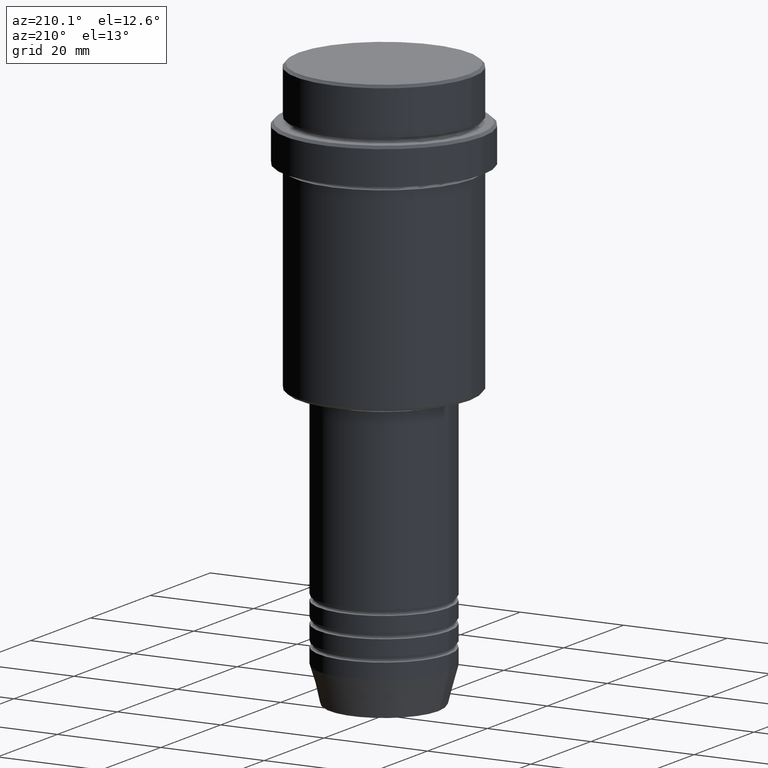
[diagram: clean part render]
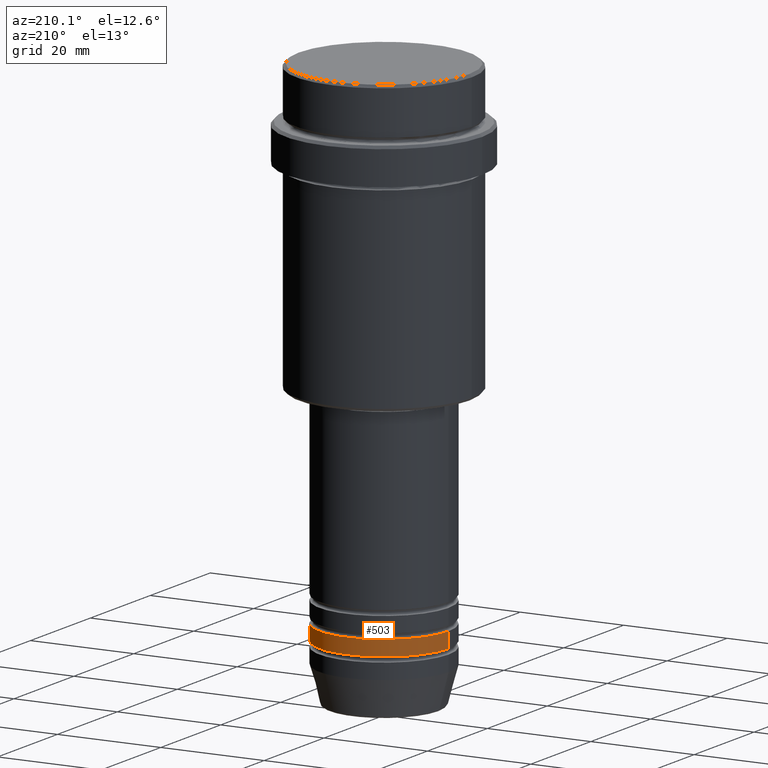
[diagram: same view with one face highlighted and labeled with its STEP entity id]
A machine part, auxiliary view. The second image highlights one B-rep face of the part: STEP entity #503.
In plain terms, the highlighted cylindrical surface (partial cylindrical patch) has radius 12.5 mm, axis along (-0, -0, 1).
Its self-contained STEP definition (entity closure, byte-faithful):
#49 = VECTOR ( 'NONE', #916, 1000.000000000000000 ) ;
#87 = VERTEX_POINT ( 'NONE', #915 ) ;
#122 = DIRECTION ( 'NONE',  ( 1.000000000000000000, 0.000000000000000000, 0.000000000000000000 ) ) ;
#153 = LINE ( 'NONE', #1024, #224 ) ;
#174 = CYLINDRICAL_SURFACE ( 'NONE', #407, 12.50000000000000000 ) ;
#224 = VECTOR ( 'NONE', #474, 1000.000000000000000 ) ;
#285 = FACE_OUTER_BOUND ( 'NONE', #325, .T. ) ;
#298 = CARTESIAN_POINT ( 'NONE',  ( 12.50000000000000000, 0.000000000000000000, -95.99999999999988631 ) ) ;
#325 = EDGE_LOOP ( 'NONE', ( #824, #1383, #430, #356 ) ) ;
#356 = ORIENTED_EDGE ( 'NONE', *, *, #1165, .F. ) ;
#380 = CARTESIAN_POINT ( 'NONE',  ( -12.50000000000000000, 1.530808498934191521E-15, -98.99999999999990052 ) ) ;
#407 = AXIS2_PLACEMENT_3D ( 'NONE', #948, #591, #738 ) ;
#430 = ORIENTED_EDGE ( 'NONE', *, *, #482, .F. ) ;
#432 = AXIS2_PLACEMENT_3D ( 'NONE', #696, #1342, #122 ) ;
#444 = EDGE_CURVE ( 'NONE', #854, #1068, #153, .T. ) ;
#468 = CARTESIAN_POINT ( 'NONE',  ( 12.50000000000000000, 0.000000000000000000, 0.000000000000000000 ) ) ;
#474 = DIRECTION ( 'NONE',  ( -0.000000000000000000, -0.000000000000000000, 1.000000000000000000 ) ) ;
#482 = EDGE_CURVE ( 'NONE', #528, #1068, #1378, .T. ) ;
#503 = ADVANCED_FACE ( 'NONE', ( #285 ), #174, .T. ) ;
#505 = CARTESIAN_POINT ( 'NONE',  ( 0.000000000000000000, 0.000000000000000000, -95.99999999999988631 ) ) ;
#528 = VERTEX_POINT ( 'NONE', #298 ) ;
#591 = DIRECTION ( 'NONE',  ( -0.000000000000000000, -0.000000000000000000, 1.000000000000000000 ) ) ;
#658 = LINE ( 'NONE', #468, #49 ) ;
#696 = CARTESIAN_POINT ( 'NONE',  ( 0.000000000000000000, 0.000000000000000000, -98.99999999999990052 ) ) ;
#738 = DIRECTION ( 'NONE',  ( 1.000000000000000000, 0.000000000000000000, 0.000000000000000000 ) ) ;
#745 = EDGE_CURVE ( 'NONE', #87, #854, #876, .T. ) ;
#824 = ORIENTED_EDGE ( 'NONE', *, *, #745, .T. ) ;
#854 = VERTEX_POINT ( 'NONE', #380 ) ;
#876 = CIRCLE ( 'NONE', #432, 12.50000000000000000 ) ;
#915 = CARTESIAN_POINT ( 'NONE',  ( 12.50000000000000000, 0.000000000000000000, -98.99999999999990052 ) ) ;
#916 = DIRECTION ( 'NONE',  ( -0.000000000000000000, -0.000000000000000000, 1.000000000000000000 ) ) ;
#941 = DIRECTION ( 'NONE',  ( 1.000000000000000000, 0.000000000000000000, 0.000000000000000000 ) ) ;
#948 = CARTESIAN_POINT ( 'NONE',  ( 0.000000000000000000, 0.000000000000000000, 0.000000000000000000 ) ) ;
#968 = AXIS2_PLACEMENT_3D ( 'NONE', #505, #1044, #941 ) ;
#1024 = CARTESIAN_POINT ( 'NONE',  ( -12.50000000000000000, 1.530808498934191521E-15, 0.000000000000000000 ) ) ;
#1044 = DIRECTION ( 'NONE',  ( -0.000000000000000000, -0.000000000000000000, 1.000000000000000000 ) ) ;
#1068 = VERTEX_POINT ( 'NONE', #1413 ) ;
#1165 = EDGE_CURVE ( 'NONE', #87, #528, #658, .T. ) ;
#1342 = DIRECTION ( 'NONE',  ( -0.000000000000000000, -0.000000000000000000, 1.000000000000000000 ) ) ;
#1378 = CIRCLE ( 'NONE', #968, 12.50000000000000000 ) ;
#1383 = ORIENTED_EDGE ( 'NONE', *, *, #444, .T. ) ;
#1413 = CARTESIAN_POINT ( 'NONE',  ( -12.50000000000000000, 1.530808498934191521E-15, -95.99999999999988631 ) ) ;